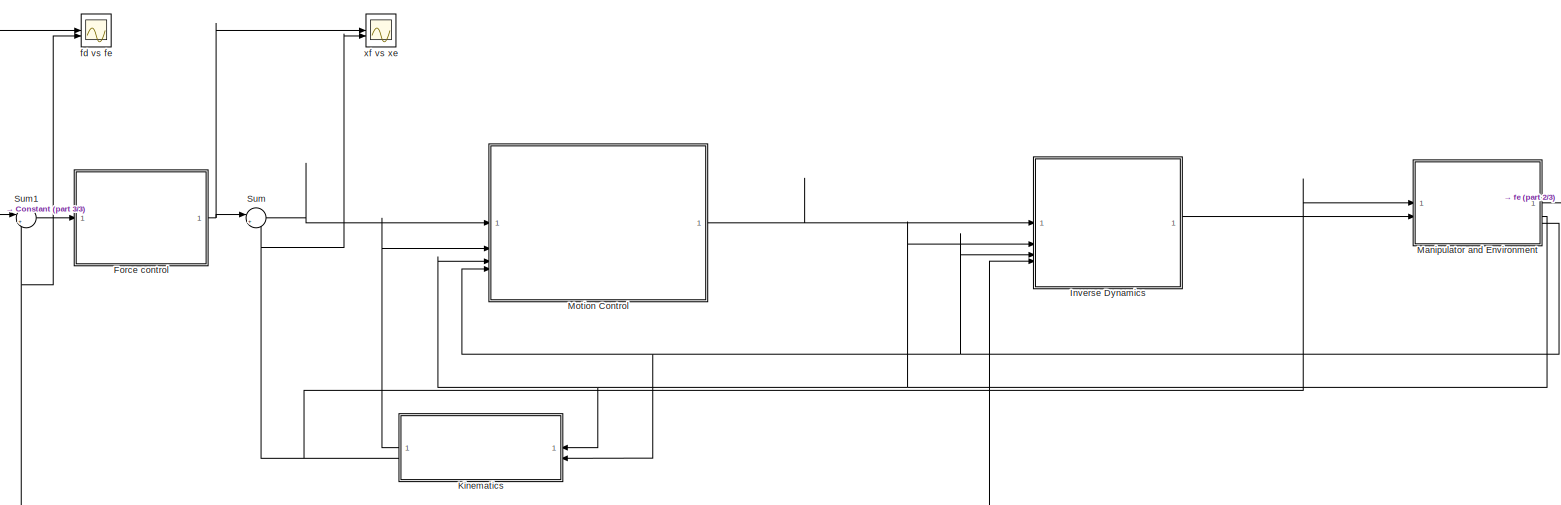
[diagram: root canvas - part 1/3, most of the canvas]
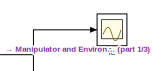
[diagram: root canvas - part 2/3, top right region]
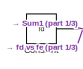
[diagram: root canvas - part 3/3, middle left region]
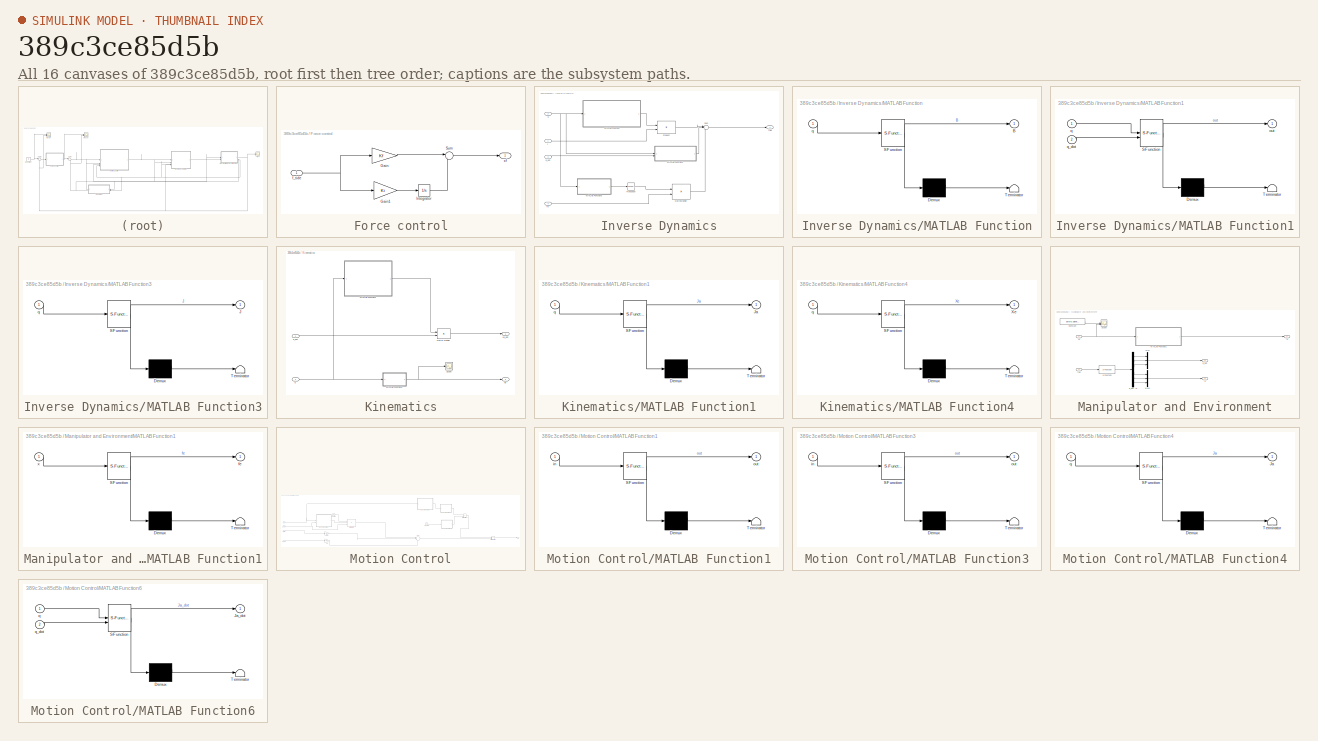
[diagram: thumbnail index - all 16 canvases of the model, root first then tree order]
MODEL slx_389c3ce85d5b
KIND model
CONFIG AbsTol = auto
CONFIG EnableMultiTasking = off
CONFIG FixedStep = auto
CONFIG MaxStep = auto
CONFIG MinStep = auto
CONFIG RelTol = 1e-3
CONFIG SampleTimeConstraint = Unconstrained
CONFIG SolverName = VariableStepAuto
CONFIG StartTime = 0.0
CONFIG StopTime = 5
BLOCK [Constant] Constant
  Value = fd
BLOCK [SubSystem] Force control
BLOCK [Gain] Force control/Gain
  Gain = Kf
  Multiplication = Matrix(K*u)
BLOCK [Gain] Force control/Gain1
  Gain = Ki
  Multiplication = Matrix(K*u)
BLOCK [Integrator] Force control/Integrator
BLOCK [Sum] Force control/Sum
  Inputs = |++
BLOCK [Inport] Force control/f_tide
BLOCK [Outport] Force control/xf
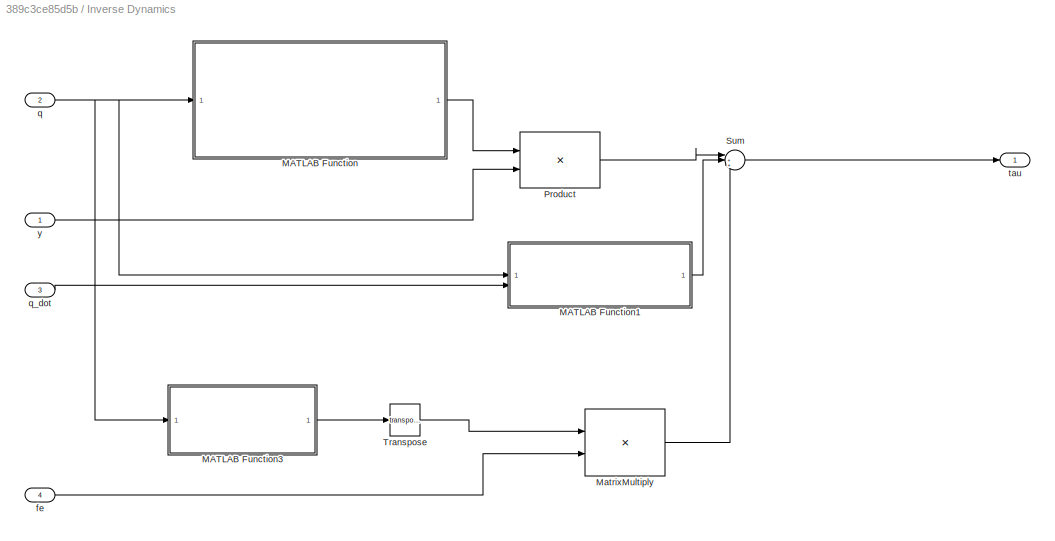
BLOCK [SubSystem] Inverse Dynamics
BLOCK [SubSystem] Inverse Dynamics/MATLAB Function
  ErrorFcn = Stateflow.Translate.translate
  LibrarySourceBlock = simulink/User-Defined\nFunctions/MATLAB Function
  PermitHierarchicalResolution = ExplicitOnly
  SFBlockType = MATLAB Function
  TreatAsAtomicUnit = on
BLOCK [Demux] Inverse Dynamics/MATLAB Function/ Demux 
  Outputs = 1
BLOCK [S-Function] Inverse Dynamics/MATLAB Function/ SFunction 
  EnableBusSupport = on
  FunctionName = sf_sfun
  Parameters = params
  PortCounts = [1 2]
  SFcnIsStateOwnerBlock = off
  SFunctionDeploymentMode = off
  Tag = Stateflow S-Function 2
BLOCK [Terminator] Inverse Dynamics/MATLAB Function/ Terminator 
BLOCK [Outport] Inverse Dynamics/MATLAB Function/B
BLOCK [Inport] Inverse Dynamics/MATLAB Function/q
BLOCK [SubSystem] Inverse Dynamics/MATLAB Function1
  ErrorFcn = Stateflow.Translate.translate
  LibrarySourceBlock = simulink/User-Defined\nFunctions/MATLAB Function
  PermitHierarchicalResolution = ExplicitOnly
  SFBlockType = MATLAB Function
  TreatAsAtomicUnit = on
BLOCK [Demux] Inverse Dynamics/MATLAB Function1/ Demux 
  Outputs = 1
BLOCK [S-Function] Inverse Dynamics/MATLAB Function1/ SFunction 
  EnableBusSupport = on
  FunctionName = sf_sfun
  Parameters = params
  PortCounts = [2 2]
  SFcnIsStateOwnerBlock = off
  SFunctionDeploymentMode = off
  Tag = Stateflow S-Function 1
BLOCK [Terminator] Inverse Dynamics/MATLAB Function1/ Terminator 
BLOCK [Outport] Inverse Dynamics/MATLAB Function1/out
BLOCK [Inport] Inverse Dynamics/MATLAB Function1/q
BLOCK [Inport] Inverse Dynamics/MATLAB Function1/q_dot
  Port = 2
BLOCK [SubSystem] Inverse Dynamics/MATLAB Function3
  ErrorFcn = Stateflow.Translate.translate
  LibrarySourceBlock = simulink/User-Defined\nFunctions/MATLAB Function
  PermitHierarchicalResolution = ExplicitOnly
  SFBlockType = MATLAB Function
  TreatAsAtomicUnit = on
BLOCK [Demux] Inverse Dynamics/MATLAB Function3/ Demux 
  Outputs = 1
BLOCK [S-Function] Inverse Dynamics/MATLAB Function3/ SFunction 
  EnableBusSupport = on
  FunctionName = sf_sfun
  PortCounts = [1 2]
  SFcnIsStateOwnerBlock = off
  SFunctionDeploymentMode = off
  Tag = Stateflow S-Function 16
BLOCK [Terminator] Inverse Dynamics/MATLAB Function3/ Terminator 
BLOCK [Outport] Inverse Dynamics/MATLAB Function3/J
BLOCK [Inport] Inverse Dynamics/MATLAB Function3/q
BLOCK [Product] Inverse Dynamics/MatrixMultiply
  Multiplication = Matrix(*)
BLOCK [Product] Inverse Dynamics/Product
  Multiplication = Matrix(*)
BLOCK [Sum] Inverse Dynamics/Sum
  Inputs = |+++
BLOCK [Math] Inverse Dynamics/Transpose
  Operator = transpose
  OutputSignalType = real
BLOCK [Inport] Inverse Dynamics/fe
  Port = 4
BLOCK [Inport] Inverse Dynamics/q
  Port = 2
BLOCK [Inport] Inverse Dynamics/q_dot
  Port = 3
BLOCK [Outport] Inverse Dynamics/tau
BLOCK [Inport] Inverse Dynamics/y
BLOCK [SubSystem] Kinematics
BLOCK [SubSystem] Kinematics/MATLAB Function1
  ErrorFcn = Stateflow.Translate.translate
  LibrarySourceBlock = simulink/User-Defined\nFunctions/MATLAB Function
  NameLocation = top
  PermitHierarchicalResolution = ExplicitOnly
  SFBlockType = MATLAB Function
  TreatAsAtomicUnit = on
BLOCK [Demux] Kinematics/MATLAB Function1/ Demux 
  Outputs = 1
BLOCK [S-Function] Kinematics/MATLAB Function1/ SFunction 
  EnableBusSupport = on
  FunctionName = sf_sfun
  PortCounts = [1 2]
  SFcnIsStateOwnerBlock = off
  SFunctionDeploymentMode = off
  Tag = Stateflow S-Function 11
BLOCK [Terminator] Kinematics/MATLAB Function1/ Terminator 
BLOCK [Outport] Kinematics/MATLAB Function1/Ja
BLOCK [Inport] Kinematics/MATLAB Function1/q
BLOCK [SubSystem] Kinematics/MATLAB Function4
  ErrorFcn = Stateflow.Translate.translate
  LibrarySourceBlock = simulink/User-Defined\nFunctions/MATLAB Function
  NameLocation = top
  PermitHierarchicalResolution = ExplicitOnly
  SFBlockType = MATLAB Function
  TreatAsAtomicUnit = on
BLOCK [Demux] Kinematics/MATLAB Function4/ Demux 
  Outputs = 1
BLOCK [S-Function] Kinematics/MATLAB Function4/ SFunction 
  EnableBusSupport = on
  FunctionName = sf_sfun
  PortCounts = [1 2]
  SFcnIsStateOwnerBlock = off
  SFunctionDeploymentMode = off
  Tag = Stateflow S-Function 9
BLOCK [Terminator] Kinematics/MATLAB Function4/ Terminator 
BLOCK [Outport] Kinematics/MATLAB Function4/Xe
BLOCK [Inport] Kinematics/MATLAB Function4/q
BLOCK [Product] Kinematics/Matrix Multiply
  Multiplication = Matrix(*)
BLOCK [Scope] Kinematics/Scope
  Floating = off
  NumInputPorts = 1
  ScopeSpecificationString = Simulink.scopes.TimeScopeBlockCfg('CurrentConfiguration', extmgr.ConfigurationSet(extmgr.Configuration('Core','General UI',true),extmgr.Configuration('Core','Source UI',true),extmgr.Configuration('Sources','WiredSimulink',true,'DataLoggingVariableName','ScopeData3'),extmgr.Configuration('Visuals','Time Domain',true,'SerializedDisplays',{struct('MinYLimReal','-2.15984','MaxYLimReal','3.73064','YLab...<+1511ch>
BLOCK [Outport] Kinematics/Xe
  Port = 2
BLOCK [Inport] Kinematics/q
BLOCK [Inport] Kinematics/q_dot
  Port = 2
BLOCK [Outport] Kinematics/xe_dot
BLOCK [SubSystem] Manipulator and Environment
BLOCK [Constant] Manipulator and Environment/Constant
  Value = parms.plane_pos
BLOCK [SubSystem] Manipulator and Environment/MATLAB Function1
  ErrorFcn = Stateflow.Translate.translate
  LibrarySourceBlock = simulink/User-Defined\nFunctions/MATLAB Function
  PermitHierarchicalResolution = ExplicitOnly
  SFBlockType = MATLAB Function
  TreatAsAtomicUnit = on
BLOCK [Demux] Manipulator and Environment/MATLAB Function1/ Demux 
  Outputs = 1
BLOCK [S-Function] Manipulator and Environment/MATLAB Function1/ SFunction 
  EnableBusSupport = on
  FunctionName = sf_sfun
  Parameters = parms
  PortCounts = [1 2]
  SFcnIsStateOwnerBlock = off
  SFunctionDeploymentMode = off
  Tag = Stateflow S-Function 12
BLOCK [Terminator] Manipulator and Environment/MATLAB Function1/ Terminator 
BLOCK [Outport] Manipulator and Environment/MATLAB Function1/fe
BLOCK [Inport] Manipulator and Environment/MATLAB Function1/x
BLOCK [Mux] Manipulator and Environment/Mux
  DisplayOption = bar
  Inputs = 3
BLOCK [Mux] Manipulator and Environment/Mux1
  DisplayOption = bar
  Inputs = 3
BLOCK [S-Function] Manipulator and Environment/S-Function
  EnableBusSupport = off
  FunctionName = Manipulator
  Parameters = params
  SFcnIsStateOwnerBlock = off
  SFunctionDeploymentMode = off
BLOCK [Scope] Manipulator and Environment/Scope
  Floating = off
  NumInputPorts = 2
  ScopeSpecificationString = Simulink.scopes.TimeScopeBlockCfg('CurrentConfiguration', extmgr.ConfigurationSet(extmgr.Configuration('Core','General UI',true),extmgr.Configuration('Core','Source UI',true),extmgr.Configuration('Sources','WiredSimulink',true,'DataLoggingVariableName','ScopeData2'),extmgr.Configuration('Visuals','Time Domain',true,'SerializedDisplays',{struct('MinYLimReal','-0.41568','MaxYLimReal','3.71237','YLab...<+1723ch>
BLOCK [Outport] Manipulator and Environment/fe
BLOCK [Outport] Manipulator and Environment/q
  Port = 2
BLOCK [Outport] Manipulator and Environment/q_dot
  Port = 3
BLOCK [Demux] Manipulator and Environment/q_dot | q
  Outputs = 6
BLOCK [Inport] Manipulator and Environment/tau
  Port = 2
BLOCK [Inport] Manipulator and Environment/xe
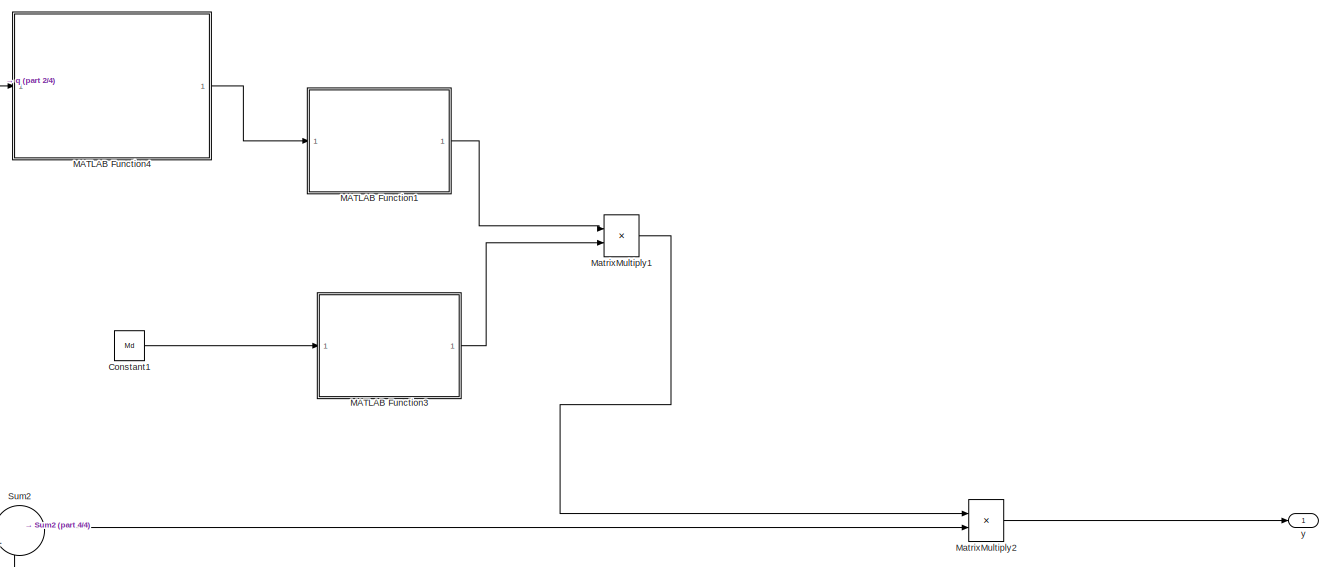
[diagram: Motion Control - part 1/4, right side, full height]
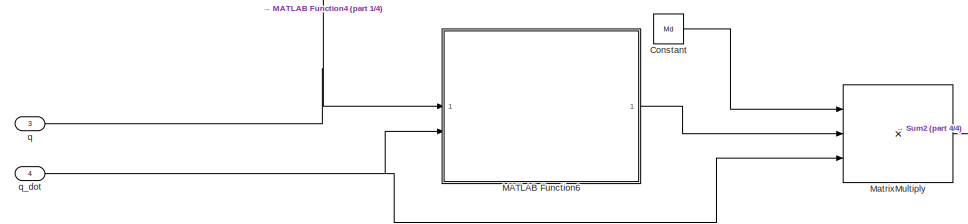
[diagram: Motion Control - part 2/4, middle left region]
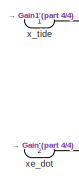
[diagram: Motion Control - part 3/4, bottom left region]
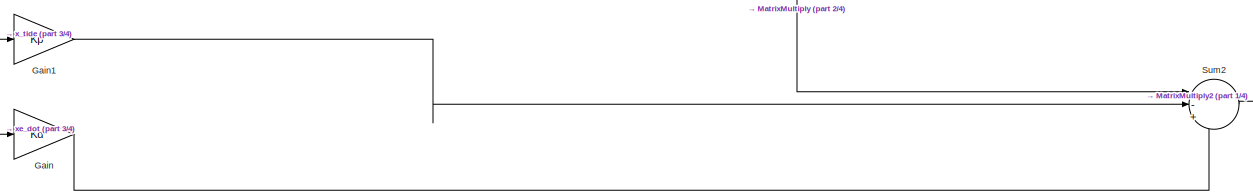
[diagram: Motion Control - part 4/4, bottom center region]
BLOCK [SubSystem] Motion Control
BLOCK [Constant] Motion Control/Constant
  Value = Md
  VectorParams1D = off
BLOCK [Constant] Motion Control/Constant1
  Value = Md
  VectorParams1D = off
BLOCK [Gain] Motion Control/Gain
  Gain = Kd
  Multiplication = Matrix(K*u)
BLOCK [Gain] Motion Control/Gain1
  Gain = Kp
  Multiplication = Matrix(K*u)
BLOCK [SubSystem] Motion Control/MATLAB Function1
  ErrorFcn = Stateflow.Translate.translate
  LibrarySourceBlock = simulink/User-Defined\nFunctions/MATLAB Function
  PermitHierarchicalResolution = ExplicitOnly
  SFBlockType = MATLAB Function
  TreatAsAtomicUnit = on
BLOCK [Demux] Motion Control/MATLAB Function1/ Demux 
  Outputs = 1
BLOCK [S-Function] Motion Control/MATLAB Function1/ SFunction 
  EnableBusSupport = on
  FunctionName = sf_sfun
  PortCounts = [1 2]
  SFcnIsStateOwnerBlock = off
  SFunctionDeploymentMode = off
  Tag = Stateflow S-Function 10
BLOCK [Terminator] Motion Control/MATLAB Function1/ Terminator 
BLOCK [Inport] Motion Control/MATLAB Function1/in
BLOCK [Outport] Motion Control/MATLAB Function1/out
BLOCK [SubSystem] Motion Control/MATLAB Function3
  ErrorFcn = Stateflow.Translate.translate
  LibrarySourceBlock = simulink/User-Defined\nFunctions/MATLAB Function
  PermitHierarchicalResolution = ExplicitOnly
  SFBlockType = MATLAB Function
  TreatAsAtomicUnit = on
BLOCK [Demux] Motion Control/MATLAB Function3/ Demux 
  Outputs = 1
BLOCK [S-Function] Motion Control/MATLAB Function3/ SFunction 
  EnableBusSupport = on
  FunctionName = sf_sfun
  PortCounts = [1 2]
  SFcnIsStateOwnerBlock = off
  SFunctionDeploymentMode = off
  Tag = Stateflow S-Function 13
BLOCK [Terminator] Motion Control/MATLAB Function3/ Terminator 
BLOCK [Inport] Motion Control/MATLAB Function3/in
BLOCK [Outport] Motion Control/MATLAB Function3/out
BLOCK [SubSystem] Motion Control/MATLAB Function4
  ErrorFcn = Stateflow.Translate.translate
  LibrarySourceBlock = simulink/User-Defined\nFunctions/MATLAB Function
  NameLocation = top
  PermitHierarchicalResolution = ExplicitOnly
  SFBlockType = MATLAB Function
  TreatAsAtomicUnit = on
BLOCK [Demux] Motion Control/MATLAB Function4/ Demux 
  Outputs = 1
BLOCK [S-Function] Motion Control/MATLAB Function4/ SFunction 
  EnableBusSupport = on
  FunctionName = sf_sfun
  PortCounts = [1 2]
  SFcnIsStateOwnerBlock = off
  SFunctionDeploymentMode = off
  Tag = Stateflow S-Function 14
BLOCK [Terminator] Motion Control/MATLAB Function4/ Terminator 
BLOCK [Outport] Motion Control/MATLAB Function4/Ja
BLOCK [Inport] Motion Control/MATLAB Function4/q
BLOCK [SubSystem] Motion Control/MATLAB Function6
  ErrorFcn = Stateflow.Translate.translate
  LibrarySourceBlock = simulink/User-Defined\nFunctions/MATLAB Function
  NameLocation = top
  PermitHierarchicalResolution = ExplicitOnly
  SFBlockType = MATLAB Function
  TreatAsAtomicUnit = on
BLOCK [Demux] Motion Control/MATLAB Function6/ Demux 
  Outputs = 1
BLOCK [S-Function] Motion Control/MATLAB Function6/ SFunction 
  EnableBusSupport = on
  FunctionName = sf_sfun
  PortCounts = [2 2]
  SFcnIsStateOwnerBlock = off
  SFunctionDeploymentMode = off
  Tag = Stateflow S-Function 17
BLOCK [Terminator] Motion Control/MATLAB Function6/ Terminator 
BLOCK [Outport] Motion Control/MATLAB Function6/Ja_dot
BLOCK [Inport] Motion Control/MATLAB Function6/q
BLOCK [Inport] Motion Control/MATLAB Function6/q_dot
  Port = 2
BLOCK [Product] Motion Control/MatrixMultiply
  Inputs = 3
  Multiplication = Matrix(*)
BLOCK [Product] Motion Control/MatrixMultiply1
  Multiplication = Matrix(*)
BLOCK [Product] Motion Control/MatrixMultiply2
  Multiplication = Matrix(*)
BLOCK [Sum] Motion Control/Sum2
  Inputs = |-+-
BLOCK [Inport] Motion Control/q
  Port = 3
BLOCK [Inport] Motion Control/q_dot
  Port = 4
BLOCK [Inport] Motion Control/x_tide
BLOCK [Inport] Motion Control/xe_dot
  Port = 2
BLOCK [Outport] Motion Control/y
BLOCK [Sum] Sum
  Inputs = |+-
BLOCK [Sum] Sum1
  Inputs = |+-
BLOCK [Scope] fd vs fe
  Floating = off
  NumInputPorts = 2
  ScopeSpecificationString = Simulink.scopes.TimeScopeBlockCfg('CurrentConfiguration', extmgr.ConfigurationSet(extmgr.Configuration('Core','General UI',true),extmgr.Configuration('Core','Source UI',true),extmgr.Configuration('Sources','WiredSimulink',true,'DataLoggingVariableName','ScopeData1'),extmgr.Configuration('Visuals','Time Domain',true,'SerializedDisplays',{struct('MinYLimReal','-0.375','MaxYLimReal','3.375','YLabelRe...<+1772ch>
BLOCK [Scope] fe
  Floating = off
  NumInputPorts = 1
  ScopeSpecificationString = Simulink.scopes.TimeScopeBlockCfg('CurrentConfiguration', extmgr.ConfigurationSet(extmgr.Configuration('Core','General UI',true),extmgr.Configuration('Core','Source UI',true),extmgr.Configuration('Sources','WiredSimulink',true,'DataLoggingVariableName','ScopeData5'),extmgr.Configuration('Visuals','Time Domain',true,'SerializedDisplays',{struct('MinYLimReal','-0.79498','MaxYLimReal','7.15479','YLab...<+1656ch>
BLOCK [Scope] xf vs xe
  Floating = off
  NumInputPorts = 2
  ScopeSpecificationString = Simulink.scopes.TimeScopeBlockCfg('CurrentConfiguration', extmgr.ConfigurationSet(extmgr.Configuration('Core','General UI',true),extmgr.Configuration('Core','Source UI',true),extmgr.Configuration('Sources','WiredSimulink',true,'DataLoggingVariableName','ScopeData1'),extmgr.Configuration('Visuals','Time Domain',true,'SerializedDisplays',{struct('MinYLimReal','-2.48414','MaxYLimReal','17.75722','YLa...<+1971ch>
NET Constant:1 -> Sum1:1, fd vs fe:1
LINE Force control/Gain1:1 -> Force control/Integrator:1
LINE Force control/Gain:1 -> Force control/Sum:1
LINE Force control/Integrator:1 -> Force control/Sum:2
LINE Force control/Sum:1 -> Force control/xf:1
NET Force control/f_tide:1 -> Force control/Gain1:1, Force control/Gain:1
NET Force control:1 -> Sum:1, xf vs xe:1
LINE Inverse Dynamics/MATLAB Function1:1 -> Inverse Dynamics/Sum:2
LINE Inverse Dynamics/MATLAB Function3:1 -> Inverse Dynamics/Transpose:1
LINE Inverse Dynamics/MATLAB Function:1 -> Inverse Dynamics/Product:1
LINE Inverse Dynamics/MatrixMultiply:1 -> Inverse Dynamics/Sum:3
LINE Inverse Dynamics/Product:1 -> Inverse Dynamics/Sum:1
LINE Inverse Dynamics/Sum:1 -> Inverse Dynamics/tau:1
LINE Inverse Dynamics/Transpose:1 -> Inverse Dynamics/MatrixMultiply:1
LINE Inverse Dynamics/fe:1 -> Inverse Dynamics/MatrixMultiply:2
NET Inverse Dynamics/q:1 -> Inverse Dynamics/MATLAB Function1:1, Inverse Dynamics/MATLAB Function3:1, Inverse Dynamics/MATLAB Function:1
LINE Inverse Dynamics/q_dot:1 -> Inverse Dynamics/MATLAB Function1:2
LINE Inverse Dynamics/y:1 -> Inverse Dynamics/Product:2
LINE Inverse Dynamics:1 -> Manipulator and Environment:2
LINE Kinematics/MATLAB Function1:1 -> Kinematics/Matrix Multiply:1
NET Kinematics/MATLAB Function4:1 -> Kinematics/Scope:1, Kinematics/Xe:1
LINE Kinematics/Matrix Multiply:1 -> Kinematics/xe_dot:1
NET Kinematics/q:1 -> Kinematics/MATLAB Function1:1, Kinematics/MATLAB Function4:1
LINE Kinematics/q_dot:1 -> Kinematics/Matrix Multiply:2
LINE Kinematics:1 -> Motion Control:2
NET Kinematics:2 -> Manipulator and Environment:1, Sum:2, xf vs xe:2
LINE Manipulator and Environment/Constant:1 -> Manipulator and Environment/Scope:1
LINE Manipulator and Environment/MATLAB Function1:1 -> Manipulator and Environment/fe:1
LINE Manipulator and Environment/Mux1:1 -> Manipulator and Environment/q:1
LINE Manipulator and Environment/Mux:1 -> Manipulator and Environment/q_dot:1
LINE Manipulator and Environment/S-Function:1 -> Manipulator and Environment/q_dot | q:1
LINE Manipulator and Environment/q_dot | q:1 -> Manipulator and Environment/Mux:1
LINE Manipulator and Environment/q_dot | q:2 -> Manipulator and Environment/Mux:2
LINE Manipulator and Environment/q_dot | q:3 -> Manipulator and Environment/Mux:3
LINE Manipulator and Environment/q_dot | q:4 -> Manipulator and Environment/Mux1:1
LINE Manipulator and Environment/q_dot | q:5 -> Manipulator and Environment/Mux1:2
LINE Manipulator and Environment/q_dot | q:6 -> Manipulator and Environment/Mux1:3
LINE Manipulator and Environment/tau:1 -> Manipulator and Environment/S-Function:1
NET Manipulator and Environment/xe:1 -> Manipulator and Environment/MATLAB Function1:1, Manipulator and Environment/Scope:2
NET Manipulator and Environment:1 -> Inverse Dynamics:4, Sum1:2, fd vs fe:2, fe:1
NET Manipulator and Environment:2 -> Inverse Dynamics:2, Kinematics:1, Motion Control:3
NET Manipulator and Environment:3 -> Inverse Dynamics:3, Kinematics:2, Motion Control:4
LINE Motion Control/Constant1:1 -> Motion Control/MATLAB Function3:1
LINE Motion Control/Constant:1 -> Motion Control/MatrixMultiply:1
LINE Motion Control/Gain1:1 -> Motion Control/Sum2:2
LINE Motion Control/Gain:1 -> Motion Control/Sum2:3
LINE Motion Control/MATLAB Function1:1 -> Motion Control/MatrixMultiply1:1
LINE Motion Control/MATLAB Function3:1 -> Motion Control/MatrixMultiply1:2
LINE Motion Control/MATLAB Function4:1 -> Motion Control/MATLAB Function1:1
LINE Motion Control/MATLAB Function6:1 -> Motion Control/MatrixMultiply:2
LINE Motion Control/MatrixMultiply1:1 -> Motion Control/MatrixMultiply2:1
LINE Motion Control/MatrixMultiply2:1 -> Motion Control/y:1
LINE Motion Control/MatrixMultiply:1 -> Motion Control/Sum2:1
LINE Motion Control/Sum2:1 -> Motion Control/MatrixMultiply2:2
NET Motion Control/q:1 -> Motion Control/MATLAB Function4:1, Motion Control/MATLAB Function6:1
NET Motion Control/q_dot:1 -> Motion Control/MATLAB Function6:2, Motion Control/MatrixMultiply:3
LINE Motion Control/x_tide:1 -> Motion Control/Gain1:1
LINE Motion Control/xe_dot:1 -> Motion Control/Gain:1
LINE Motion Control:1 -> Inverse Dynamics:1
LINE Sum1:1 -> Force control:1
LINE Sum:1 -> Motion Control:1
note: NET lines group one-source signal fan-out (src -> all destinations, sorted); 1:1 wires keep LINE
CHART Inverse Dynamics/MATLAB Function1 states=1 transitions=1
  STATE_LABEL 'eML_blk_kernel()'
  STATE_LABEL 'SCRIPT:\nfunction out = n(q, q_dot, params)\n    \n    m1 = params.m(1);\n    m2 = params.m(2);\n    m3 = params.m(3);\n\n    q1 = q(1);\n    q2 = q(2);\n    q3 = q(3);\n\n    q1_dot = q_dot(1);\n    q2_dot = q_dot(2);\n    q3_dot = q_dot(3);\n    \n    r1 = 0.4;\n    a1 = 0.02;\n    a2 = 0.03;\n    a3 = 0.01;\n    b1 = 0.1256;\n    b2 = 0.03;\n    b3 = 0.01;\n    c1 = 0.4;\n    c2 = 0.46;\n    c3 = 0.15;\n    g = params....<+414ch>'
CHART Inverse Dynamics/MATLAB Function states=1 transitions=1
  STATE_LABEL 'eML_blk_kernel()'
  STATE_LABEL 'SCRIPT:\nfunction B = inertiaMatrix(q, params)\n    q1 = q(1); % not used in this matrix\n    q2 = q(2);\n    q3 = q(3);\n\n    m1 = params.m(1);\n    m2 = params.m(2);\n    m3 = params.m(3);\n        \n    r1 = 0.4;\n    a1 = 0.02;\n    a2 = 0.03;\n    a3 = 0.01;\n    b1 = 0.1256;\n    b2 = 0.03;\n    b3 = 0.01;\n    c1 = 0.4;\n    c2 = 0.46;\n    c3 = 0.15;\n\n   B = [[(a2^2*m2)/12 + (3*a1^4*m1)/2 + (a3^2*m3)/12 + (...<+629ch>'
CHART Kinematics/MATLAB Function4 states=1 transitions=1
  STATE_LABEL 'eML_blk_kernel()'
  STATE_LABEL 'SCRIPT:\nfunction Xe = Kinematics(q)\n    q1 = q(1);\n    q2 = q(2);\n    q3 = q(3);\n     \n    r1 = 0.4;\n    a1 = 0.02;\n    a2 = 0.03;\n    a3 = 0.01;\n    b1 = 0.1256;\n    b2 = 0.03;\n    b3 = 0.01;\n    c1 = 0.4;\n    c2 = 0.46;\n    c3 = 0.15;\n    \n    H = [[0, -sin(q1), cos(q1),              cos(q1)*(c1 + c3 + q3)]\n[1,        0,       0,                           - c2 - q2]\n[0,  cos(q1), sin(q1), r1 + s...<+162ch>'
CHART Motion Control/MATLAB Function1 states=1 transitions=1
  STATE_LABEL 'eML_blk_kernel()'
  STATE_LABEL 'SCRIPT:\nfunction out = inv(in)\n    out = pinv(in);\nend\n'
CHART Kinematics/MATLAB Function1 states=1 transitions=1
  STATE_LABEL 'eML_blk_kernel()'
  STATE_LABEL 'SCRIPT:\nfunction Ja = AnalyticalJacobian(q)\n    \n    q1 = q(1);\n    q2 = q(2);\n    q3 = q(3);\n    \n    r1 = 0.4;\n    a1 = 0.02;\n    a2 = 0.03;\n    a3 = 0.01;\n    b1 = 0.1256;\n    b2 = 0.03;\n    b3 = 0.01;\n    c1 = 0.4;\n    c2 = 0.46;\n    c3 = 0.15;\n\n       H = [[0, -sin(q1), cos(q1),              cos(q1)*(c1 + c3 + q3)]\n[1,        0,       0,                           - c2 - q2]\n[0,  cos(q1), sin(...<+421ch>'
CHART Manipulator and Environment/MATLAB Function1 states=1 transitions=1
  STATE_LABEL 'eML_blk_kernel()'
  STATE_LABEL 'SCRIPT:\nfunction fe = Environment(x, parms)\n    if(x(parms.plane_axis) >= parms.plane_pos(parms.plane_axis))\n        xr = parms.plane_pos;\n\n        xe = zeros(3,1);\n        xe(parms.plane_axis) = x(parms.plane_axis);\n\n        fe = parms.Ke * (xe - xr);\n\n    else\n        fe = zeros(3,1);\n    end\nend\n'
CHART Motion Control/MATLAB Function3 states=1 transitions=1
  STATE_LABEL 'eML_blk_kernel()'
  STATE_LABEL 'SCRIPT:\nfunction out = inv(in)\n    out = pinv(in);\nend\n'
CHART Motion Control/MATLAB Function4 states=1 transitions=1
  STATE_LABEL 'eML_blk_kernel()'
  STATE_LABEL 'SCRIPT:\nfunction Ja = AnalyticalJacobian(q)\n    \n    q1 = q(1);\n    q2 = q(2);\n    q3 = q(3);\n    \n    r1 = 0.4;\n    a1 = 0.02;\n    a2 = 0.03;\n    a3 = 0.01;\n    b1 = 0.1256;\n    b2 = 0.03;\n    b3 = 0.01;\n    c1 = 0.4;\n    c2 = 0.46;\n    c3 = 0.15;\n\n       H = [[0, -sin(q1), cos(q1),              cos(q1)*(c1 + c3 + q3)]\n[1,        0,       0,                           - c2 - q2]\n[0,  cos(q1), sin(...<+421ch>'
CHART Inverse Dynamics/MATLAB Function3 states=1 transitions=1
  STATE_LABEL 'eML_blk_kernel()'
  STATE_LABEL 'SCRIPT:\nfunction J = GeomatricalJacobian(q)\nq1 = q(1);\nq2 = q(2);\nq3 = q(3);\n   \n    r1 = 0.4;\n    a1 = 0.02;\n    a2 = 0.03;\n    a3 = 0.01;\n    b1 = 0.1256;\n    b2 = 0.03;\n    b3 = 0.01;\n    c1 = 0.4;\n    c2 = 0.46;\n    c3 = 0.15;\n\n    J = [\n[-sin(q1)*(c1 + c3 + q3),  0, cos(q1)]\n[                      0, -1,       0]\n[ cos(q1)*(c1 + c3 + q3),  0, sin(q1)]\n];\n\nend\n'
CHART Motion Control/MATLAB Function6 states=1 transitions=1
  STATE_LABEL 'eML_blk_kernel()'
  STATE_LABEL 'SCRIPT:\nfunction Ja_dot = AnalyticalJacobian_Dot(q, q_dot)\nq1 = q(1);\nq2 = q(2);\nq3 = q(3);\n\n    r1 = 0.4;\n    a1 = 0.02;\n    a2 = 0.03;\n    a3 = 0.01;\n    b1 = 0.1256;\n    b2 = 0.03;\n    b3 = 0.01;\n    c1 = 0.4;\n    c2 = 0.46;\n    c3 = 0.15;\n\nq1_dot = q_dot(1);\nq2_dot = q_dot(2);\nq3_dot = q_dot(3);\n\nH = [[0, -sin(q1), cos(q1),              cos(q1)*(c1 + c3 + q3)]\n[1,        0,       0,           ...<+437ch>'
CHART  states=0 transitions=0
CHART  states=0 transitions=0
CHART  states=0 transitions=0
CHART  states=0 transitions=0
CHART  states=0 transitions=0
CHART  states=0 transitions=0
CHART  states=0 transitions=0
CHART  states=0 transitions=0
CHART  states=0 transitions=0
CHART  states=0 transitions=0
